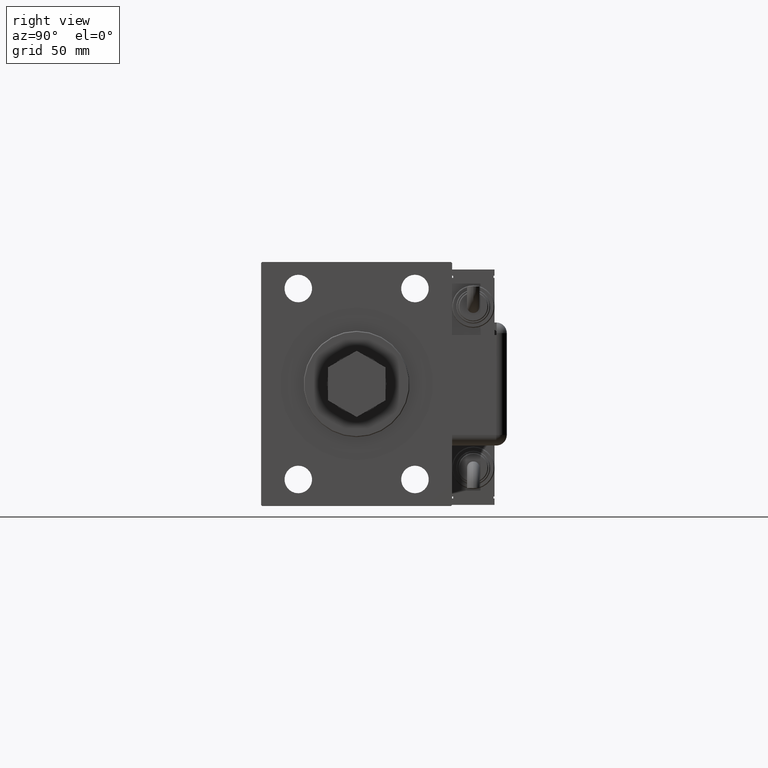
[diagram: clean part render]
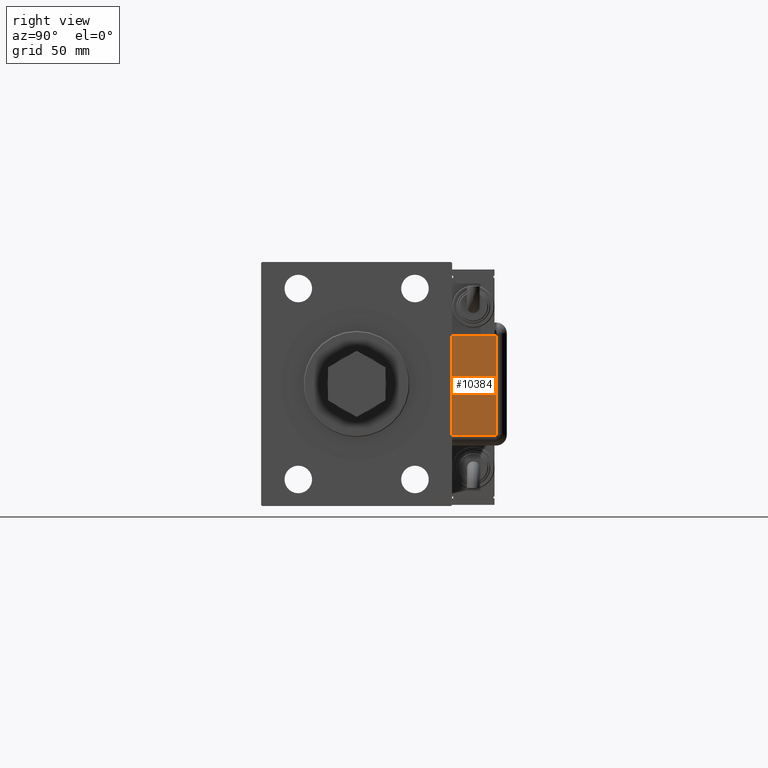
[diagram: same view with one face highlighted and labeled with its STEP entity id]
A machine part, right view. The second image highlights one B-rep face of the part: STEP entity #10384.
In plain terms, the highlighted planar face has unit normal (1, -0, 0).
Its self-contained STEP definition (entity closure, byte-faithful):
#417 = VERTEX_POINT ( 'NONE', #12911 ) ;
#3895 = AXIS2_PLACEMENT_3D ( 'NONE', #27884, #28800, #22956 ) ;
#5644 = DIRECTION ( 'NONE',  ( 1.000000000000000000, -0.000000000000000000, -0.000000000000000000 ) ) ;
#6596 = VERTEX_POINT ( 'NONE', #53320 ) ;
#10384 = ADVANCED_FACE ( 'NONE', ( #19247 ), #38075, .T. ) ;
#10565 = CARTESIAN_POINT ( 'NONE',  ( -23.99999999999999645, 20.79999999999998295, 0.000000000000000000 ) ) ;
#12911 = CARTESIAN_POINT ( 'NONE',  ( -23.99999999999999289, 1.007682896475360021E-13, 0.000000000000000000 ) ) ;
#14663 = VECTOR ( 'NONE', #5644, 1000.000000000000000 ) ;
#18235 = DIRECTION ( 'NONE',  ( 1.000000000000000000, -2.079047426506382950E-15, -0.000000000000000000 ) ) ;
#19247 = FACE_OUTER_BOUND ( 'NONE', #52052, .T. ) ;
#19267 = VERTEX_POINT ( 'NONE', #59553 ) ;
#21616 = CARTESIAN_POINT ( 'NONE',  ( 23.00000000000000000, 0.000000000000000000, 0.000000000000000000 ) ) ;
#22956 = DIRECTION ( 'NONE',  ( -1.000000000000000000, 0.000000000000000000, -0.000000000000000000 ) ) ;
#23277 = CARTESIAN_POINT ( 'NONE',  ( 23.99999999999999289, 20.79999999999998295, 0.000000000000000000 ) ) ;
#27032 = ORIENTED_EDGE ( 'NONE', *, *, #57682, .T. ) ;
#27520 = EDGE_CURVE ( 'NONE', #49160, #6596, #35503, .T. ) ;
#27884 = CARTESIAN_POINT ( 'NONE',  ( 0.000000000000000000, 0.000000000000000000, 0.000000000000000000 ) ) ;
#28800 = DIRECTION ( 'NONE',  ( 0.000000000000000000, 0.000000000000000000, -1.000000000000000000 ) ) ;
#31823 = VECTOR ( 'NONE', #18235, 1000.000000000000000 ) ;
#35503 = LINE ( 'NONE', #21616, #57748 ) ;
#37061 = CARTESIAN_POINT ( 'NONE',  ( 28.99999999999999645, -9.421223957302265857E-15, 0.000000000000000000 ) ) ;
#37699 = EDGE_CURVE ( 'NONE', #19267, #6596, #52632, .T. ) ;
#38065 = DIRECTION ( 'NONE',  ( -0.000000000000000000, 1.000000000000000000, -0.000000000000000000 ) ) ;
#38075 = PLANE ( 'NONE',  #3895 ) ;
#39630 = ORIENTED_EDGE ( 'NONE', *, *, #37699, .T. ) ;
#39798 = VECTOR ( 'NONE', #38065, 1000.000000000000000 ) ;
#40875 = CARTESIAN_POINT ( 'NONE',  ( 23.00000000000000000, 0.000000000000000000, 0.000000000000000000 ) ) ;
#43938 = LINE ( 'NONE', #10565, #39798 ) ;
#49160 = VERTEX_POINT ( 'NONE', #40875 ) ;
#50343 = DIRECTION ( 'NONE',  ( 0.000000000000000000, 1.000000000000000000, 0.000000000000000000 ) ) ;
#51965 = EDGE_CURVE ( 'NONE', #417, #49160, #59647, .T. ) ;
#52052 = EDGE_LOOP ( 'NONE', ( #39630, #57579, #57284, #27032 ) ) ;
#52632 = LINE ( 'NONE', #23277, #14663 ) ;
#53320 = CARTESIAN_POINT ( 'NONE',  ( 23.00000000000000000, 20.79999999999998295, 1.734723475976807094E-15 ) ) ;
#57284 = ORIENTED_EDGE ( 'NONE', *, *, #51965, .F. ) ;
#57579 = ORIENTED_EDGE ( 'NONE', *, *, #27520, .F. ) ;
#57682 = EDGE_CURVE ( 'NONE', #417, #19267, #43938, .T. ) ;
#57748 = VECTOR ( 'NONE', #50343, 1000.000000000000000 ) ;
#59553 = CARTESIAN_POINT ( 'NONE',  ( -23.99999999999999645, 20.79999999999998295, 0.000000000000000000 ) ) ;
#59647 = LINE ( 'NONE', #37061, #31823 ) ;